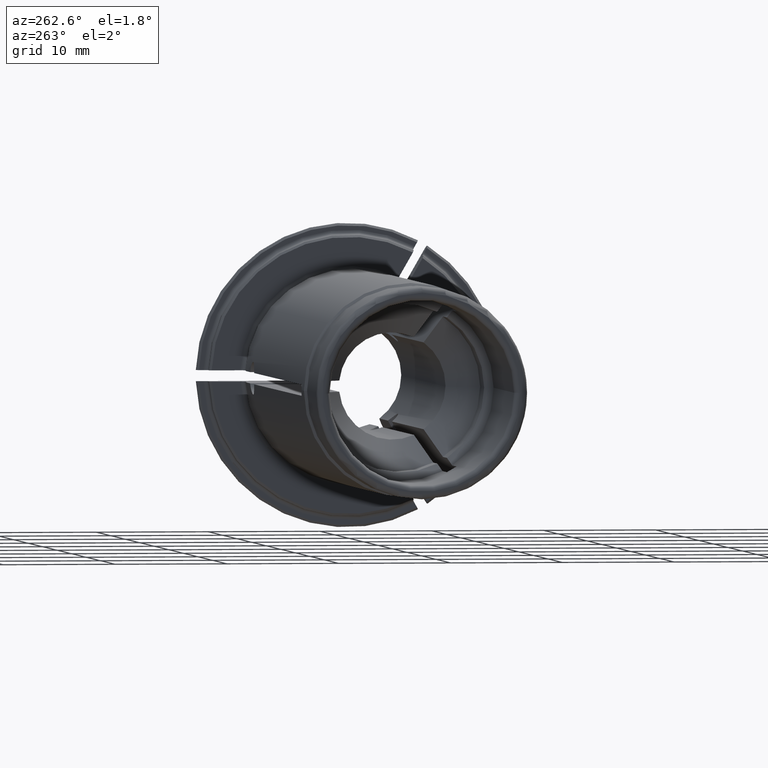
[diagram: clean part render]
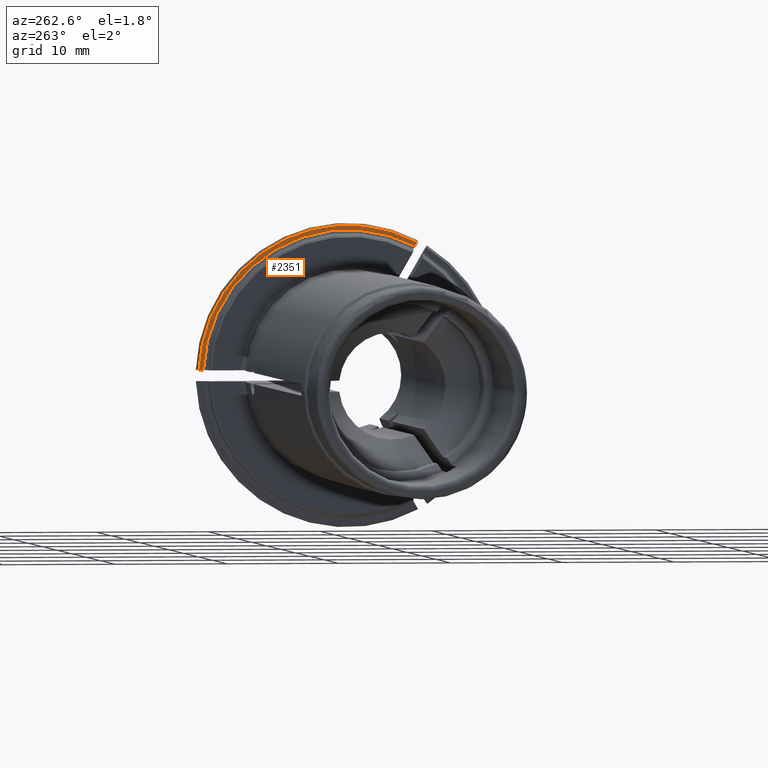
[diagram: same view with one face highlighted and labeled with its STEP entity id]
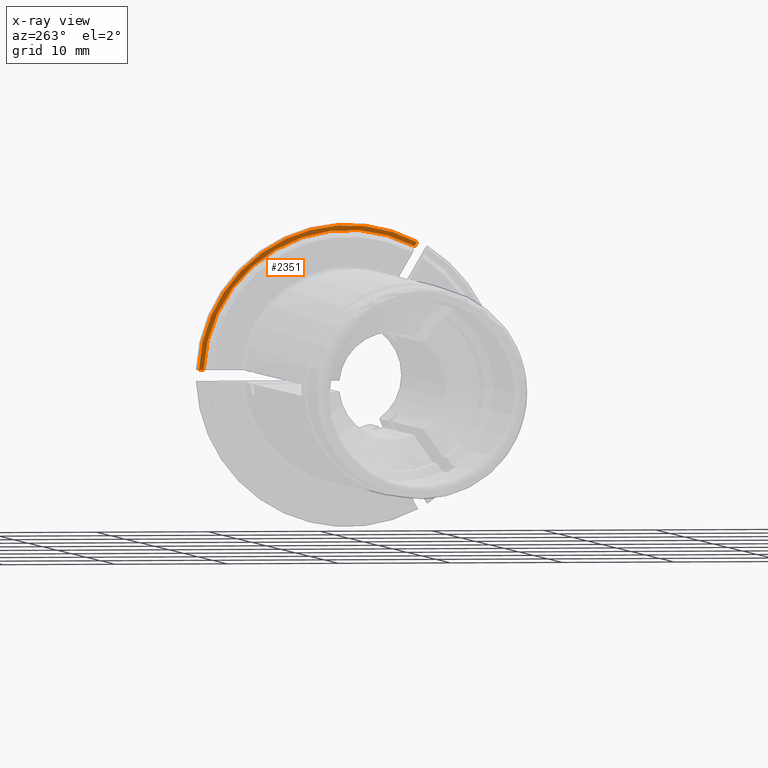
[diagram: x-ray of the same camera — body ghosted, the highlighted face saturated]
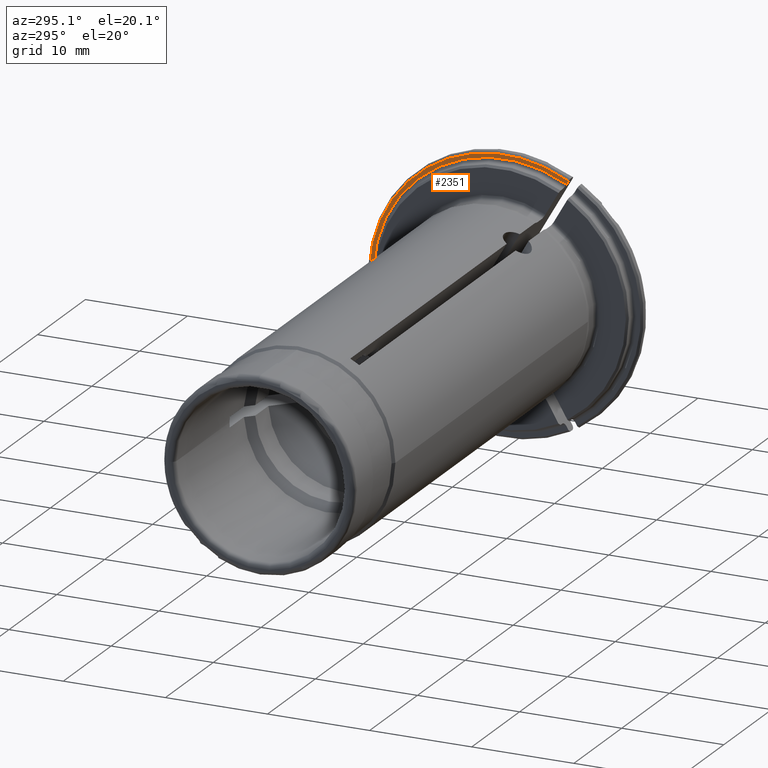
[diagram: same view with one face highlighted and labeled with its STEP entity id]
A machine part, auxiliary view. The second image highlights one B-rep face of the part: STEP entity #2351.
The next image is the same camera in x-ray: the body ghosted, the highlighted face saturated — about 0% of this face is hidden behind the body in this view.
A second angle (auxiliary view) of the same face is appended — the face is thin or edge-on in the first view.
In plain terms, the highlighted planar face has unit normal (1, 0, 0).
Its self-contained STEP definition (entity closure, byte-faithful):
#570=CARTESIAN_POINT('',(1.E0,0.E0,0.E0));
#571=DIRECTION('',(-1.E0,0.E0,0.E0));
#572=DIRECTION('',(0.E0,-4.670892021385E-1,8.842101996955E-1));
#573=AXIS2_PLACEMENT_3D('',#570,#571,#572);
#635=DIRECTION('',(0.E0,5.E-1,-8.660254037844E-1));
#636=VECTOR('',#635,4.002917452113E-1);
#637=CARTESIAN_POINT('',(1.E0,-6.212286388442E0,1.175999565595E1));
#638=LINE('',#637,#636);
#639=DIRECTION('',(0.E0,-1.E0,0.E0));
#640=VECTOR('',#639,4.002917452113E-1);
#641=CARTESIAN_POINT('',(1.E0,1.329059818067E1,5.E-1));
#642=LINE('',#641,#640);
#686=CARTESIAN_POINT('',(1.E0,0.E0,0.E0));
#687=DIRECTION('',(1.E0,0.E0,0.E0));
#688=DIRECTION('',(0.E0,9.992485608882E-1,3.875968992248E-2));
#689=AXIS2_PLACEMENT_3D('',#686,#687,#688);
#1637=CARTESIAN_POINT('',(1.E0,1.329059818067E1,5.E-1));
#1638=CARTESIAN_POINT('',(1.E0,1.289030643546E1,5.E-1));
#1639=VERTEX_POINT('',#1637);
#1640=VERTEX_POINT('',#1638);
#1730=CARTESIAN_POINT('',(1.E0,-6.212286388442E0,1.175999565595E1));
#1731=CARTESIAN_POINT('',(1.E0,-6.012140515837E0,1.141333283567E1));
#1732=VERTEX_POINT('',#1730);
#1733=VERTEX_POINT('',#1731);
#2338=CARTESIAN_POINT('',(1.E0,0.E0,0.E0));
#2339=DIRECTION('',(1.E0,0.E0,0.E0));
#2340=DIRECTION('',(0.E0,-1.E0,0.E0));
#2341=AXIS2_PLACEMENT_3D('',#2338,#2339,#2340);
#2342=PLANE('',#2341);
#2343=ORIENTED_EDGE('',*,*,#1971,.T.);
#2345=ORIENTED_EDGE('',*,*,#2344,.F.);
#2347=ORIENTED_EDGE('',*,*,#2346,.F.);
#2348=ORIENTED_EDGE('',*,*,#2300,.F.);
#2349=EDGE_LOOP('',(#2343,#2345,#2347,#2348));
#2350=FACE_OUTER_BOUND('',#2349,.F.);
#2351=ADVANCED_FACE('',(#2350),#2342,.F.);
#574=CIRCLE('',#573,1.33E1);
#690=CIRCLE('',#689,1.29E1);
#1971=EDGE_CURVE('',#1732,#1733,#638,.T.);
#2300=EDGE_CURVE('',#1732,#1639,#574,.T.);
#2344=EDGE_CURVE('',#1640,#1733,#690,.T.);
#2346=EDGE_CURVE('',#1639,#1640,#642,.T.);